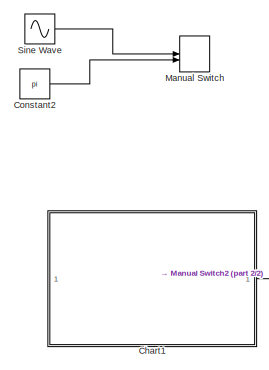
[diagram: root canvas - part 1/2, middle left region]
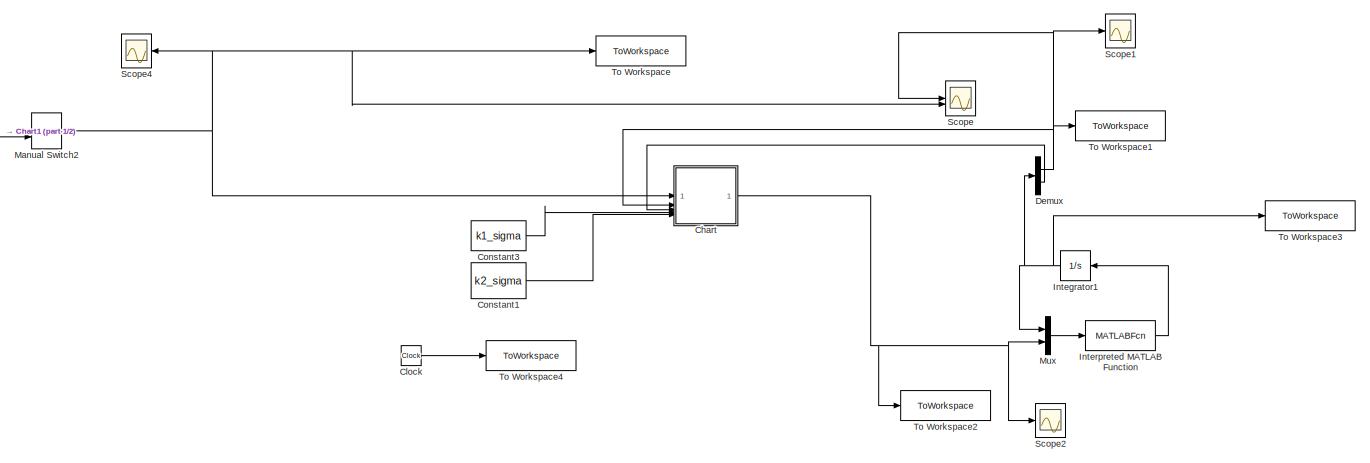
[diagram: root canvas - part 2/2, most of the canvas]
MODEL slx_73a0ad08843e
KIND model
CONFIG AbsTol = auto
CONFIG EnableMultiTasking = off
CONFIG FixedStep = auto
CONFIG MaxStep = auto
CONFIG MinStep = auto
CONFIG RelTol = 1e-3
CONFIG SampleTimeConstraint = Unconstrained
CONFIG SolverName = VariableStepAuto
CONFIG StartTime = 0.0
CONFIG StopTime = 10
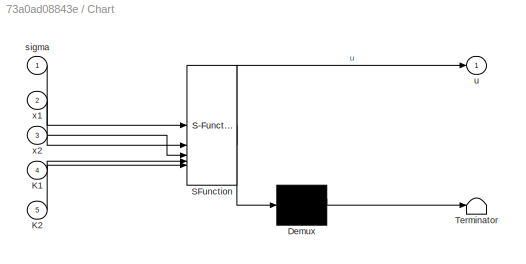
BLOCK [SubSystem] Chart
  ErrorFcn = Stateflow.Translate.translate
  PermitHierarchicalResolution = ExplicitOnly
  SFBlockType = Chart
  TreatAsAtomicUnit = on
BLOCK [Demux] Chart/ Demux 
  Outputs = 1
BLOCK [S-Function] Chart/ SFunction 
  EnableBusSupport = on
  FunctionName = sf_sfun
  PortCounts = [5 2]
  SFcnIsStateOwnerBlock = off
  SFunctionDeploymentMode = off
  Tag = Stateflow S-Function 3
BLOCK [Terminator] Chart/ Terminator 
BLOCK [Inport] Chart/K1
  Port = 4
BLOCK [Inport] Chart/K2
  Port = 5
BLOCK [Inport] Chart/sigma
BLOCK [Outport] Chart/u
BLOCK [Inport] Chart/x1
  Port = 2
BLOCK [Inport] Chart/x2
  Port = 3
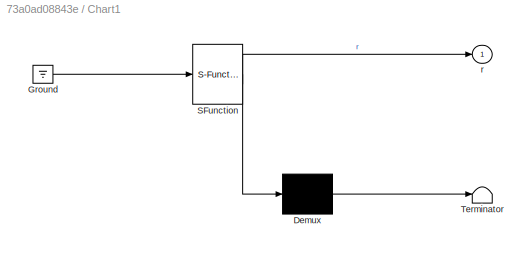
BLOCK [SubSystem] Chart1
  ErrorFcn = Stateflow.Translate.translate
  PermitHierarchicalResolution = ExplicitOnly
  SFBlockType = Chart
  TreatAsAtomicUnit = on
BLOCK [Demux] Chart1/ Demux 
  Outputs = 1
BLOCK [Ground] Chart1/ Ground 
BLOCK [S-Function] Chart1/ SFunction 
  EnableBusSupport = on
  FunctionName = sf_sfun
  PortCounts = [1 2]
  SFcnIsStateOwnerBlock = off
  SFunctionDeploymentMode = off
  Tag = Stateflow S-Function 1
BLOCK [Terminator] Chart1/ Terminator 
BLOCK [Outport] Chart1/r
BLOCK [Clock] Clock
BLOCK [Constant] Constant1
  Value = k2_sigma
BLOCK [Constant] Constant2
  Value = pi
BLOCK [Constant] Constant3
  Value = k1_sigma
BLOCK [Demux] Demux
  Outputs = 2
BLOCK [Integrator] Integrator1
BLOCK [MATLABFcn] Interpreted MATLAB Function
  MATLABFcn = gain_scheduling_sys_WP5
  OutputDimensions = 2
BLOCK [ManualSwitch] Manual Switch
BLOCK [ManualSwitch] Manual Switch2
  CurrentSetting = 0
BLOCK [Mux] Mux
  DisplayOption = bar
  Inputs = 2
BLOCK [Scope] Scope
  Floating = off
  NumInputPorts = 2
  ScopeSpecificationString = Simulink.scopes.TimeScopeBlockCfg('CurrentConfiguration', extmgr.ConfigurationSet(extmgr.Configuration('Core','General UI',true),extmgr.Configuration('Core','Source UI',true),extmgr.Configuration('Sources','WiredSimulink',true,'DataLoggingVariableName','ScopeData2'),extmgr.Configuration('Visuals','Time Domain',true,'SerializedDisplays',{struct('MinYLimReal','-12.50336','MaxYLimReal','6.49728','YLa...<+1460ch>
BLOCK [Scope] Scope1
  Floating = off
  NumInputPorts = 1
  ScopeSpecificationString = Simulink.scopes.TimeScopeBlockCfg('CurrentConfiguration', extmgr.ConfigurationSet(extmgr.Configuration('Core','General UI',true),extmgr.Configuration('Core','Source UI',true),extmgr.Configuration('Sources','WiredSimulink',true,'DataLoggingVariableName','ScopeData3'),extmgr.Configuration('Visuals','Time Domain',true,'SerializedDisplays',{struct('MinYLimReal','-0.51898','MaxYLimReal','4.67083','YLab...<+1443ch>
BLOCK [Scope] Scope2
  Floating = off
  NumInputPorts = 1
  ScopeSpecificationString = Simulink.scopes.TimeScopeBlockCfg('CurrentConfiguration', extmgr.ConfigurationSet(extmgr.Configuration('Core','General UI',true),extmgr.Configuration('Core','Source UI',true),extmgr.Configuration('Sources','WiredSimulink',true),extmgr.Configuration('Visuals','Time Domain',true,'SerializedDisplays',{struct('MinYLimReal','-41.98655','MaxYLimReal','168.23291','YLabelReal','','MinYLimMag','0.00000','M...<+1419ch>
BLOCK [Scope] Scope4
  Floating = off
  NumInputPorts = 1
  ScopeSpecificationString = Simulink.scopes.TimeScopeBlockCfg('CurrentConfiguration', extmgr.ConfigurationSet(extmgr.Configuration('Core','General UI',true),extmgr.Configuration('Core','Source UI',true),extmgr.Configuration('Sources','WiredSimulink',true,'DataLoggingVariableName','ScopeData1'),extmgr.Configuration('Visuals','Time Domain',true,'SerializedDisplays',{struct('MinYLimReal','-3.927','MaxYLimReal','3.927','YLabelRe...<+1420ch>
BLOCK [Sin] Sine Wave
  SampleTime = 0
BLOCK [ToWorkspace] To Workspace
  FixptAsFi = on
  MaxDataPoints = inf
  SampleTime = -1
  VariableName = r
BLOCK [ToWorkspace] To Workspace1
  FixptAsFi = on
  MaxDataPoints = inf
  SampleTime = -1
  VariableName = y
BLOCK [ToWorkspace] To Workspace2
  FixptAsFi = on
  MaxDataPoints = inf
  SampleTime = -1
  VariableName = u
BLOCK [ToWorkspace] To Workspace3
  FixptAsFi = on
  MaxDataPoints = inf
  SampleTime = -1
  VariableName = x
BLOCK [ToWorkspace] To Workspace4
  FixptAsFi = on
  MaxDataPoints = inf
  SampleTime = -1
  VariableName = t
LINE Chart1:1 -> Manual Switch2:2
NET Chart:1 -> Mux:2, Scope2:1, To Workspace2:1
LINE Clock:1 -> To Workspace4:1
LINE Constant1:1 -> Chart:5
LINE Constant2:1 -> Manual Switch:2
LINE Constant3:1 -> Chart:4
NET Demux:1 -> Chart:2, Scope1:1, Scope:1, To Workspace1:1
LINE Demux:2 -> Chart:3
NET Integrator1:1 -> Demux:1, Mux:1, To Workspace3:1
LINE Interpreted MATLAB Function:1 -> Integrator1:1
NET Manual Switch2:1 -> Chart:1, Scope4:1, Scope:2, To Workspace:1
LINE Mux:1 -> Interpreted MATLAB Function:1
LINE Sine Wave:1 -> Manual Switch:1
note: NET lines group one-source signal fan-out (src -> all destinations, sorted); 1:1 wires keep LINE
CHART Chart1 states=34 transitions=66
  STATE_LABEL 'S0\nd = 1;'
  STATE_LABEL 'S33\nr=-3.1416;\nd=1;'
  STATE_LABEL 'S35\nr=-2.9452;'
  STATE_LABEL 'S34\nr=-2.7489 ;'
  STATE_LABEL 'S26\nr=-2.5525 ;'
  STATE_LABEL 'S27\nr=-2.3562;'
  STATE_LABEL 'S25\nr=-2.1598;'
  STATE_LABEL 'S24\nr=-1.9635 ;'
  STATE_LABEL 'S21\nr=-1.7671 ;'
  STATE_LABEL 'S23\nr=-1.5708;'
  STATE_LABEL 'S22\nr=-1.3744 ;'
  STATE_LABEL 'S13\nr=-1.1781;'
  STATE_LABEL 'S14\nr=-0.9817 ;'
  STATE_LABEL 'S10\nr=-0.7854 ;'
  STATE_LABEL 'S12\nr=-0.5890;'
  STATE_LABEL 'S11\nr=-0.3927 ;'
  STATE_LABEL 'S4\nr=-0.1963;'
  STATE_LABEL 'S1\nr=0;'
  STATE_LABEL 'S2\nr=0.1963;'
  STATE_LABEL 'S3\nr=0.3927 ;'
  STATE_LABEL 'S6\nr=0.5890 ;'
  STATE_LABEL 'S8\nr=0.7854;'
  STATE_LABEL 'S9\nr=0.9817 ;'
  STATE_LABEL 'S7\nr=1.1781;'
  STATE_LABEL 'S19\nr=1.3744;'
  STATE_LABEL 'S20\nr=1.5708 ;'
  STATE_LABEL 'S15\nr=1.7671 ;'
  STATE_LABEL 'S17\nr=1.9635;'
  STATE_LABEL 'S16\nr=2.1598 ;'
  STATE_LABEL 'S18\nr=2.3562;'
  STATE_LABEL 'S28\nr=2.5525;'
  STATE_LABEL 'S30\nr=2.7489;'
  STATE_LABEL 'S29\nr=2.9452 ;'
  STATE_LABEL 'S31\nr=3.1416;\nd=0;'
CHART Chart states=33 transitions=65
  STATE_LABEL 'PI_controller_31\nduring:\nu = -K1(31) * x1 - K2(31) * x2 + K1(31) * sigma;'
  STATE_LABEL 'Gain_Scheduler'
  STATE_LABEL 'PI_controller_0\nduring:\nu = -K1(1) * x1 - K2(1) * x2 + K1(1) * sigma;'
  STATE_LABEL 'PI_controller_30\nduring:\nu = -K1(30) * x1 - K2(30) * x2 + K1(30) * sigma;'
  STATE_LABEL 'PI_controller_1\nduring:\nu = -K1(2) * x1 - K2(2) * x2 + K1(2) * sigma;'
  STATE_LABEL 'PI_controller_29\nduring:\nu = -K1(29) * x1 - K2(29) * x2 + K1(29) * sigma;'
  STATE_LABEL 'PI_controller_2\nduring:\nu = -K1(3) * x1 - K2(3) * x2 + K1(3) * sigma;'
  STATE_LABEL 'PI_controller_28\nduring:\nu = -K1(28) * x1 - K2(28) * x2 + K1(28) * sigma;'
  STATE_LABEL 'PI_controller_3\nduring:\nu = -K1(4) * x1 - K2(4) * x2 + K1(4) * sigma;'
  STATE_LABEL 'PI_controller_27\nduring:\nu = -K1(27) * x1 - K2(27) * x2 + K1(27) * sigma;'
  STATE_LABEL 'PI_controller_4\nduring:\nu = -K1(5) * x1 - K2(5) * x2 + K1(5) * sigma;'
  STATE_LABEL 'PI_controller_26\nduring:\nu = -K1(26) * x1 - K2(26) * x2 + K1(26) * sigma;'
  STATE_LABEL 'PI_controller_5\nduring:\nu = -K1(6) * x1 - K2(6) * x2 + K1(6) * sigma;'
  STATE_LABEL 'PI_controller_25\nduring:\nu = -K1(25) * x1 - K2(25) * x2 + K1(25) * sigma;'
  STATE_LABEL 'PI_controller_6\nduring:\nu = -K1(7) * x1 - K2(7) * x2 + K1(7) * sigma;'
  STATE_LABEL 'PI_controller_24\nduring:\nu = -K1(24) * x1 - K2(24) * x2 + K1(24) * sigma;'
  STATE_LABEL 'PI_controller_7\nduring:\nu = -K1(8) * x1 - K2(8) * x2 + K1(8) * sigma;'
  STATE_LABEL 'PI_controller_23\nduring:\nu = -K1(24) * x1 - K2(24) * x2 + K1(24) * sigma;'
  STATE_LABEL 'PI_controller_8\nduring:\nu = -K1(9) * x1 - K2(9) * x2 + K1(9) * sigma;'
  STATE_LABEL 'PI_controller_22\nduring:\nu = -K1(23) * x1 - K2(23) * x2 + K1(23) * sigma;'
  STATE_LABEL 'PI_controller_9\nduring:\nu = -K1(10) * x1 - K2(10) * x2 + K1(10) * sigma;'
  STATE_LABEL 'PI_controller_21\nduring:\nu = -K1(22) * x1 - K2(22) * x2 + K1(22) * sigma;'
  STATE_LABEL 'PI_controller_10\nduring:\nu = -K1(11) * x1 - K2(11) * x2 + K1(11) * sigma;'
  STATE_LABEL 'PI_controller_20\nduring:\nu = -K1(21) * x1 - K2(21) * x2 + K1(21) * sigma;'
  STATE_LABEL 'PI_controller_11\nduring:\nu = -K1(12) * x1 - K2(12) * x2 + K1(12) * sigma;'
  STATE_LABEL 'PI_controller_19\nduring:\nu = -K1(20) * x1 - K2(20) * x2 + K1(20) * sigma;'
  STATE_LABEL 'PI_controller_12\nduring:\nu = -K1(13) * x1 - K2(13) * x2 + K1(13) * sigma;'
  STATE_LABEL 'PI_controller_13\nduring:\nu = -K1(14) * x1 - K2(14) * x2 + K1(14) * sigma;'
  STATE_LABEL 'PI_controller_18\nduring:\nu = -K1(19) * x1 - K2(19) * x2 + K1(19) * sigma;'
  STATE_LABEL 'PI_controller_17\nduring:\nu = -K1(18) * x1 - K2(18) * x2 + K1(18) * sigma;'
  STATE_LABEL 'PI_controller_14\nduring:\nu = -K1(15) * x1 - K2(15) * x2 + K1(15) * sigma;'
  STATE_LABEL 'PI_controller_15\nduring:\nu = -K1(16) * x1 - K2(16) * x2 + K1(16) * sigma;'
  STATE_LABEL 'PI_controller_16\nduring:\nu = -K1(17) * x1 - K2(17) * x2 + K1(17) * sigma;'
CHART  states=0 transitions=0
CHART  states=0 transitions=0
